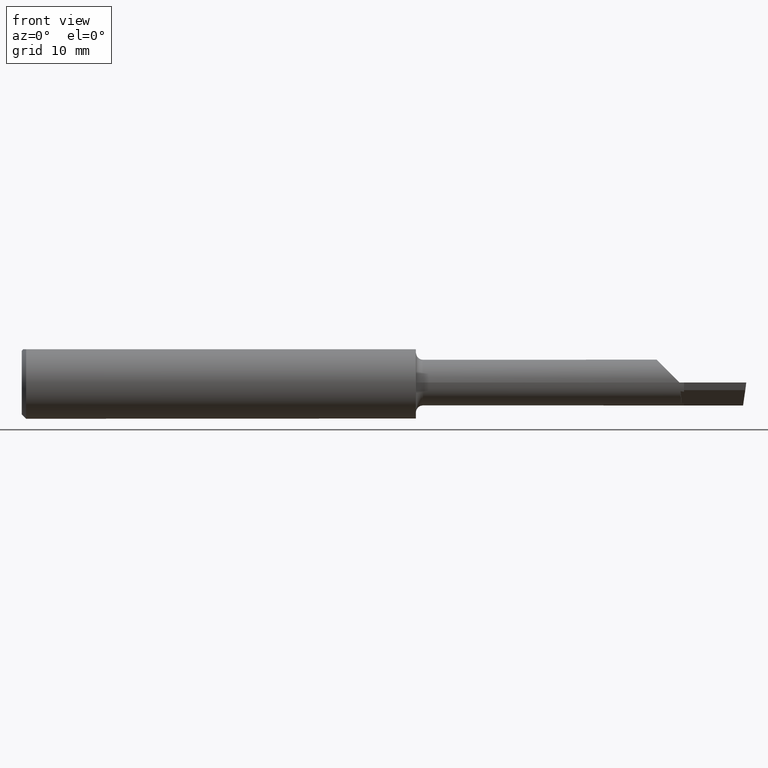
[diagram: clean part render]
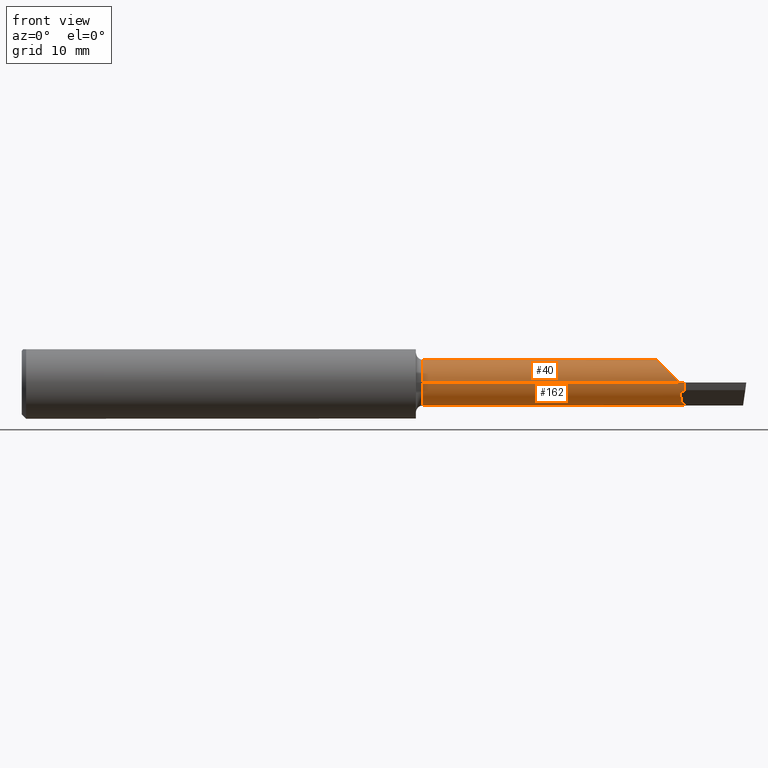
[diagram: same view with one multi-face feature highlighted, each face labeled with its STEP entity id]
A machine part, front view. The highlighted faces form ONE feature: a constant-radius fillet chain: 2 tangent blend faces with common blend radius 2.0104 mm. The faces share edges in the B-rep.
Their STEP definitions:
[1] entity #40 (Cylinder):
#19 = DIRECTION ( 'NONE',  ( -1.000000000000000000, 3.414809992080329023E-18, -0.000000000000000000 ) ) ;
#23 = LINE ( 'NONE', #191, #422 ) ;
#38 = CARTESIAN_POINT ( 'NONE',  ( 1.385000000000000009, 0.1133222222222218939, 0.05239843939104803922 ) ) ;
#40 = ADVANCED_FACE ( 'NONE', ( #246 ), #185, .T. ) ;
#55 = EDGE_CURVE ( 'NONE', #330, #458, #589, .T. ) ;
#59 = CARTESIAN_POINT ( 'NONE',  ( 1.834999999999999964, 0.1133222222222221853, 0.05239843939104762288 ) ) ;
#62 = DIRECTION ( 'NONE',  ( 1.000000000000000000, -3.414809992080329023E-18, 0.000000000000000000 ) ) ;
#76 = ORIENTED_EDGE ( 'NONE', *, *, #356, .F. ) ;
#88 = DIRECTION ( 'NONE',  ( -3.414809992080329408E-18, -1.000000000000000000, 0.000000000000000000 ) ) ;
#122 = ORIENTED_EDGE ( 'NONE', *, *, #315, .F. ) ;
#124 = LINE ( 'NONE', #59, #433 ) ;
#139 = AXIS2_PLACEMENT_3D ( 'NONE', #463, #19, #88 ) ;
#166 = CIRCLE ( 'NONE', #258, 0.07915000000000009528 ) ;
#185 = CYLINDRICAL_SURFACE ( 'NONE', #139, 0.07915000000000002589 ) ;
#188 = CARTESIAN_POINT ( 'NONE',  ( 2.270000000000000018, -0.02515000000000007160, 2.816687638038912303E-17 ) ) ;
#191 = CARTESIAN_POINT ( 'NONE',  ( -2.702822108731581707E-19, -0.02515000000000002997, 0.000000000000000000 ) ) ;
#200 = ORIENTED_EDGE ( 'NONE', *, *, #687, .F. ) ;
#203 = CARTESIAN_POINT ( 'NONE',  ( 2.270000000000000018, -0.02515000000000007160, 2.816687638038912303E-17 ) ) ;
#246 = FACE_OUTER_BOUND ( 'NONE', #675, .T. ) ;
#258 = AXIS2_PLACEMENT_3D ( 'NONE', #499, #434, #437 ) ;
#280 = CARTESIAN_POINT ( 'NONE',  ( 2.217601560608951861, 0.1133222222222222408, 0.05239843939104755349 ) ) ;
#299 = ORIENTED_EDGE ( 'NONE', *, *, #55, .F. ) ;
#315 = EDGE_CURVE ( 'NONE', #673, #330, #124, .T. ) ;
#330 = VERTEX_POINT ( 'NONE', #280 ) ;
#354 = VERTEX_POINT ( 'NONE', #539 ) ;
#356 = EDGE_CURVE ( 'NONE', #354, #673, #166, .T. ) ;
#422 = VECTOR ( 'NONE', #515, 39.37007874015748143 ) ;
#433 = VECTOR ( 'NONE', #62, 39.37007874015748143 ) ;
#434 = DIRECTION ( 'NONE',  ( -1.000000000000000000, 3.414809992080329023E-18, -0.000000000000000000 ) ) ;
#437 = DIRECTION ( 'NONE',  ( 0.000000000000000000, -1.000000000000000000, 0.000000000000000000 ) ) ;
#454 = CARTESIAN_POINT ( 'NONE',  ( 2.152626807264919506, 0.05593098589442761087, 0.1173731927350792487 ) ) ;
#458 = VERTEX_POINT ( 'NONE', #203 ) ;
#463 = CARTESIAN_POINT ( 'NONE',  ( 0.000000000000000000, 0.05399999999999999939, 0.000000000000000000 ) ) ;
#499 = CARTESIAN_POINT ( 'NONE',  ( 1.385000000000000009, 0.05399999999999999245, 0.000000000000000000 ) ) ;
#514 = CARTESIAN_POINT ( 'NONE',  ( 2.217601560608951861, 0.1133222222222222408, 0.05239843939104755349 ) ) ;
#515 = DIRECTION ( 'NONE',  ( -1.000000000000000000, 3.414809992080329023E-18, -0.000000000000000000 ) ) ;
#539 = CARTESIAN_POINT ( 'NONE',  ( 1.385000000000000009, -0.02515000000000010630, 0.000000000000000000 ) ) ;
#589 =( BOUNDED_CURVE ( )  B_SPLINE_CURVE ( 3, ( #514, #454, #668, #188 ),
 .UNSPECIFIED., .F., .T. ) 
 B_SPLINE_CURVE_WITH_KNOTS ( ( 4, 4 ),
 ( 5.435892245814753387, 7.853981633974485455 ),
 .UNSPECIFIED. ) 
 CURVE ( )  GEOMETRIC_REPRESENTATION_ITEM ( )  RATIONAL_B_SPLINE_CURVE ( ( 1.000000000000000000, 0.5692753596694920537, 0.5692753596694920537, 1.000000000000000000 ) ) 
 REPRESENTATION_ITEM ( '' )  );
#668 = CARTESIAN_POINT ( 'NONE',  ( 2.183308174668249890, -0.02515000000000026242, 0.08669182533174914218 ) ) ;
#673 = VERTEX_POINT ( 'NONE', #38 ) ;
#675 = EDGE_LOOP ( 'NONE', ( #200, #299, #122, #76 ) ) ;
#687 = EDGE_CURVE ( 'NONE', #458, #354, #23, .T. ) ;
[2] entity #162 (Cylinder):
#5 = CARTESIAN_POINT ( 'NONE',  ( 2.487758143022276158, 0.05399999999999998551, -0.07915000000000001201 ) ) ;
#8 = CARTESIAN_POINT ( 'NONE',  ( -2.702822108727469846E-19, -0.02515000000000001262, 9.802154982235641300E-16 ) ) ;
#15 = VERTEX_POINT ( 'NONE', #556 ) ;
#20 = CARTESIAN_POINT ( 'NONE',  ( 2.273959837147569552, -0.01141125714284146192, -0.04927684878934050772 ) ) ;
#21 = ORIENTED_EDGE ( 'NONE', *, *, #661, .T. ) ;
#23 = LINE ( 'NONE', #191, #422 ) ;
#24 = VECTOR ( 'NONE', #313, 39.37007874015748143 ) ;
#30 = ORIENTED_EDGE ( 'NONE', *, *, #580, .T. ) ;
#36 = CARTESIAN_POINT ( 'NONE',  ( 2.285000000000000142, -0.02515000000000000221, 0.000000000000000000 ) ) ;
#41 = ORIENTED_EDGE ( 'NONE', *, *, #650, .T. ) ;
#54 =( BOUNDED_CURVE ( )  B_SPLINE_CURVE ( 3, ( #335, #487, #657, #386 ),
 .UNSPECIFIED., .F., .T. ) 
 B_SPLINE_CURVE_WITH_KNOTS ( ( 4, 4 ),
 ( 2.748591085287169111, 2.776193934836911570 ),
 .UNSPECIFIED. ) 
 CURVE ( )  GEOMETRIC_REPRESENTATION_ITEM ( )  RATIONAL_B_SPLINE_CURVE ( ( 1.000000000000000000, 0.9999365078992319411, 0.9999365078992319411, 1.000000000000000000 ) ) 
 REPRESENTATION_ITEM ( '' )  );
#57 =( BOUNDED_CURVE ( )  B_SPLINE_CURVE ( 3, ( #155, #366, #581, #173 ),
 .UNSPECIFIED., .F., .F. ) 
 B_SPLINE_CURVE_WITH_KNOTS ( ( 4, 4 ),
 ( 5.658406471906769042, 6.505699533271600110 ),
 .UNSPECIFIED. ) 
 CURVE ( )  GEOMETRIC_REPRESENTATION_ITEM ( )  RATIONAL_B_SPLINE_CURVE ( ( 1.000000000000000000, 0.9410639745696128822, 0.9410639745696128822, 1.000000000000000000 ) ) 
 REPRESENTATION_ITEM ( '' )  );
#63 = ORIENTED_EDGE ( 'NONE', *, *, #687, .T. ) ;
#64 = DIRECTION ( 'NONE',  ( 1.000000000000000000, -3.414809992080329023E-18, 0.000000000000000000 ) ) ;
#73 = CARTESIAN_POINT ( 'NONE',  ( 2.285000000000000142, 0.05399999999999998551, -0.07914999999999999813 ) ) ;
#87 = VERTEX_POINT ( 'NONE', #36 ) ;
#99 = CARTESIAN_POINT ( 'NONE',  ( 2.285000000000000142, 0.02126251053591694806, -0.07206232915739714529 ) ) ;
#102 = CARTESIAN_POINT ( 'NONE',  ( 2.285000000000000142, 0.05399999999999999245, 0.000000000000000000 ) ) ;
#106 = CARTESIAN_POINT ( 'NONE',  ( 2.273197635668314120, -0.01932702215997963296, -0.02979715290342114728 ) ) ;
#115 = EDGE_CURVE ( 'NONE', #467, #134, #667, .T. ) ;
#134 = VERTEX_POINT ( 'NONE', #576 ) ;
#142 = VERTEX_POINT ( 'NONE', #106 ) ;
#155 = CARTESIAN_POINT ( 'NONE',  ( 2.489336331022029114, 0.1133222222222221853, -0.05239843939104762288 ) ) ;
#156 = DIRECTION ( 'NONE',  ( -3.414809992080329408E-18, -1.000000000000000000, 0.000000000000000000 ) ) ;
#162 = ADVANCED_FACE ( 'NONE', ( #694 ), #426, .T. ) ;
#173 = CARTESIAN_POINT ( 'NONE',  ( 2.487758143022276158, 0.05399999999999998551, -0.07915000000000001201 ) ) ;
#178 = VERTEX_POINT ( 'NONE', #205 ) ;
#187 = EDGE_LOOP ( 'NONE', ( #431, #63, #227, #541, #204, #450, #605, #21, #30, #245, #41 ) ) ;
#191 = CARTESIAN_POINT ( 'NONE',  ( -2.702822108731581707E-19, -0.02515000000000002997, 0.000000000000000000 ) ) ;
#196 = AXIS2_PLACEMENT_3D ( 'NONE', #640, #472, #156 ) ;
#197 = VECTOR ( 'NONE', #64, 39.37007874015748143 ) ;
#203 = CARTESIAN_POINT ( 'NONE',  ( 2.270000000000000018, -0.02515000000000007160, 2.816687638038912303E-17 ) ) ;
#204 = ORIENTED_EDGE ( 'NONE', *, *, #233, .T. ) ;
#205 = CARTESIAN_POINT ( 'NONE',  ( 1.385000000000000009, 0.1133222222222218800, -0.05239843939104806697 ) ) ;
#207 = LINE ( 'NONE', #475, #677 ) ;
#221 = VERTEX_POINT ( 'NONE', #526 ) ;
#227 = ORIENTED_EDGE ( 'NONE', *, *, #364, .F. ) ;
#229 = EDGE_CURVE ( 'NONE', #241, #467, #207, .T. ) ;
#233 = EDGE_CURVE ( 'NONE', #221, #241, #57, .T. ) ;
#241 = VERTEX_POINT ( 'NONE', #5 ) ;
#244 = CARTESIAN_POINT ( 'NONE',  ( 1.834999999999999964, 0.1133222222222221853, -0.05239843939104762288 ) ) ;
#245 = ORIENTED_EDGE ( 'NONE', *, *, #370, .T. ) ;
#247 = CARTESIAN_POINT ( 'NONE',  ( 2.277233991773410793, 0.02259213874828995897, -0.07265169476064090026 ) ) ;
#250 = CARTESIAN_POINT ( 'NONE',  ( 2.279883121630959408, 0.02214713058057739964, -0.07245931446127634734 ) ) ;
#269 = DIRECTION ( 'NONE',  ( 0.000000000000000000, -1.000000000000000000, 0.000000000000000000 ) ) ;
#275 = CARTESIAN_POINT ( 'NONE',  ( 1.385000000000000009, 0.05399999999999999245, 0.000000000000000000 ) ) ;
#293 = CARTESIAN_POINT ( 'NONE',  ( 2.275375585052592076, 0.003291847016187856700, -0.06430803688952695107 ) ) ;
#313 = DIRECTION ( 'NONE',  ( -1.000000000000000000, 3.414809992080329023E-18, -0.000000000000000000 ) ) ;
#326 = VERTEX_POINT ( 'NONE', #535 ) ;
#335 = CARTESIAN_POINT ( 'NONE',  ( 2.273197635668314120, -0.01932702215997963296, -0.02979715290342114728 ) ) ;
#344 = AXIS2_PLACEMENT_3D ( 'NONE', #275, #443, #269 ) ;
#354 = VERTEX_POINT ( 'NONE', #539 ) ;
#357 = CARTESIAN_POINT ( 'NONE',  ( 2.282471863881387009, 0.02170390870515553211, -0.07226285373221838504 ) ) ;
#363 = LINE ( 'NONE', #244, #24 ) ;
#364 = EDGE_CURVE ( 'NONE', #178, #354, #553, .T. ) ;
#366 = CARTESIAN_POINT ( 'NONE',  ( 2.487699651873949147, 0.09806266089631178462, -0.06967435635555069284 ) ) ;
#370 = EDGE_CURVE ( 'NONE', #142, #15, #54, .T. ) ;
#386 = CARTESIAN_POINT ( 'NONE',  ( 2.285000000000000142, -0.01847670748194148171, -0.03180957988683739274 ) ) ;
#388 =( BOUNDED_CURVE ( )  B_SPLINE_CURVE ( 3, ( #504, #293, #20, #445 ),
 .UNSPECIFIED., .F., .T. ) 
 B_SPLINE_CURVE_WITH_KNOTS ( ( 4, 4 ),
 ( 5.120432697754830009, 5.897208409155007658 ),
 .UNSPECIFIED. ) 
 CURVE ( )  GEOMETRIC_REPRESENTATION_ITEM ( )  RATIONAL_B_SPLINE_CURVE ( ( 1.000000000000000000, 0.9503471841698744038, 0.9503471841698744038, 1.000000000000000000 ) ) 
 REPRESENTATION_ITEM ( '' )  );
#422 = VECTOR ( 'NONE', #515, 39.37007874015748143 ) ;
#426 = CYLINDRICAL_SURFACE ( 'NONE', #196, 0.07915000000000002589 ) ;
#431 = ORIENTED_EDGE ( 'NONE', *, *, #565, .F. ) ;
#443 = DIRECTION ( 'NONE',  ( -1.000000000000000000, 3.414809992080329023E-18, -0.000000000000000000 ) ) ;
#445 = CARTESIAN_POINT ( 'NONE',  ( 2.273197635668314120, -0.01932702215997963296, -0.02979715290342114728 ) ) ;
#450 = ORIENTED_EDGE ( 'NONE', *, *, #229, .T. ) ;
#458 = VERTEX_POINT ( 'NONE', #203 ) ;
#460 =( BOUNDED_CURVE ( )  B_SPLINE_CURVE ( 3, ( #99, #357, #250, #247 ),
 .UNSPECIFIED., .F., .F. ) 
 B_SPLINE_CURVE_WITH_KNOTS ( ( 4, 4 ),
 ( 3.506991372342673774, 3.525366796687345872 ),
 .UNSPECIFIED. ) 
 CURVE ( )  GEOMETRIC_REPRESENTATION_ITEM ( )  RATIONAL_B_SPLINE_CURVE ( ( 1.000000000000000000, 0.9999718621796157558, 0.9999718621796157558, 1.000000000000000000 ) ) 
 REPRESENTATION_ITEM ( '' )  );
#467 = VERTEX_POINT ( 'NONE', #73 ) ;
#472 = DIRECTION ( 'NONE',  ( -1.000000000000000000, 3.414809992080329023E-18, -0.000000000000000000 ) ) ;
#475 = CARTESIAN_POINT ( 'NONE',  ( 2.500000000000000000, 0.05399999999999998551, -0.07915000000000001201 ) ) ;
#477 = AXIS2_PLACEMENT_3D ( 'NONE', #518, #512, #577 ) ;
#487 = CARTESIAN_POINT ( 'NONE',  ( 2.277267893623376338, -0.01905285134638351127, -0.03047185257655248003 ) ) ;
#504 = CARTESIAN_POINT ( 'NONE',  ( 2.277233991773410793, 0.02259213874828995897, -0.07265169476064090026 ) ) ;
#507 = AXIS2_PLACEMENT_3D ( 'NONE', #102, #693, #528 ) ;
#512 = DIRECTION ( 'NONE',  ( -1.000000000000000000, 3.414809992080329023E-18, -0.000000000000000000 ) ) ;
#515 = DIRECTION ( 'NONE',  ( -1.000000000000000000, 3.414809992080329023E-18, -0.000000000000000000 ) ) ;
#518 = CARTESIAN_POINT ( 'NONE',  ( 2.285000000000000142, 0.05399999999999999245, 0.000000000000000000 ) ) ;
#524 = DIRECTION ( 'NONE',  ( -1.000000000000000000, -0.000000000000000000, -0.000000000000000000 ) ) ;
#526 = CARTESIAN_POINT ( 'NONE',  ( 2.489336331022029114, 0.1133222222222221853, -0.05239843939104762288 ) ) ;
#528 = DIRECTION ( 'NONE',  ( 0.000000000000000000, -1.000000000000000000, 0.000000000000000000 ) ) ;
#535 = CARTESIAN_POINT ( 'NONE',  ( 2.277233991773410793, 0.02259213874828995897, -0.07265169476064090026 ) ) ;
#539 = CARTESIAN_POINT ( 'NONE',  ( 1.385000000000000009, -0.02515000000000010630, 0.000000000000000000 ) ) ;
#541 = ORIENTED_EDGE ( 'NONE', *, *, #682, .F. ) ;
#553 = CIRCLE ( 'NONE', #344, 0.07915000000000009528 ) ;
#556 = CARTESIAN_POINT ( 'NONE',  ( 2.285000000000000142, -0.01847670748194148171, -0.03180957988683739274 ) ) ;
#565 = EDGE_CURVE ( 'NONE', #458, #87, #654, .T. ) ;
#576 = CARTESIAN_POINT ( 'NONE',  ( 2.285000000000000142, 0.02126251053591694806, -0.07206232915739714529 ) ) ;
#577 = DIRECTION ( 'NONE',  ( 0.000000000000000000, -1.000000000000000000, 0.000000000000000000 ) ) ;
#580 = EDGE_CURVE ( 'NONE', #326, #142, #388, .T. ) ;
#581 = CARTESIAN_POINT ( 'NONE',  ( 2.487140643474095025, 0.07705019563525705717, -0.07915000000000006752 ) ) ;
#605 = ORIENTED_EDGE ( 'NONE', *, *, #115, .T. ) ;
#637 = CIRCLE ( 'NONE', #477, 0.07914999999999999813 ) ;
#640 = CARTESIAN_POINT ( 'NONE',  ( 0.000000000000000000, 0.05399999999999999939, 0.000000000000000000 ) ) ;
#650 = EDGE_CURVE ( 'NONE', #15, #87, #637, .T. ) ;
#654 = LINE ( 'NONE', #8, #197 ) ;
#657 = CARTESIAN_POINT ( 'NONE',  ( 2.281202264868767760, -0.01876939512313970451, -0.03114270416480120068 ) ) ;
#661 = EDGE_CURVE ( 'NONE', #134, #326, #460, .T. ) ;
#667 = CIRCLE ( 'NONE', #507, 0.07914999999999999813 ) ;
#677 = VECTOR ( 'NONE', #524, 39.37007874015748143 ) ;
#682 = EDGE_CURVE ( 'NONE', #221, #178, #363, .T. ) ;
#687 = EDGE_CURVE ( 'NONE', #458, #354, #23, .T. ) ;
#693 = DIRECTION ( 'NONE',  ( -1.000000000000000000, 3.414809992080329023E-18, -0.000000000000000000 ) ) ;
#694 = FACE_OUTER_BOUND ( 'NONE', #187, .T. ) ;